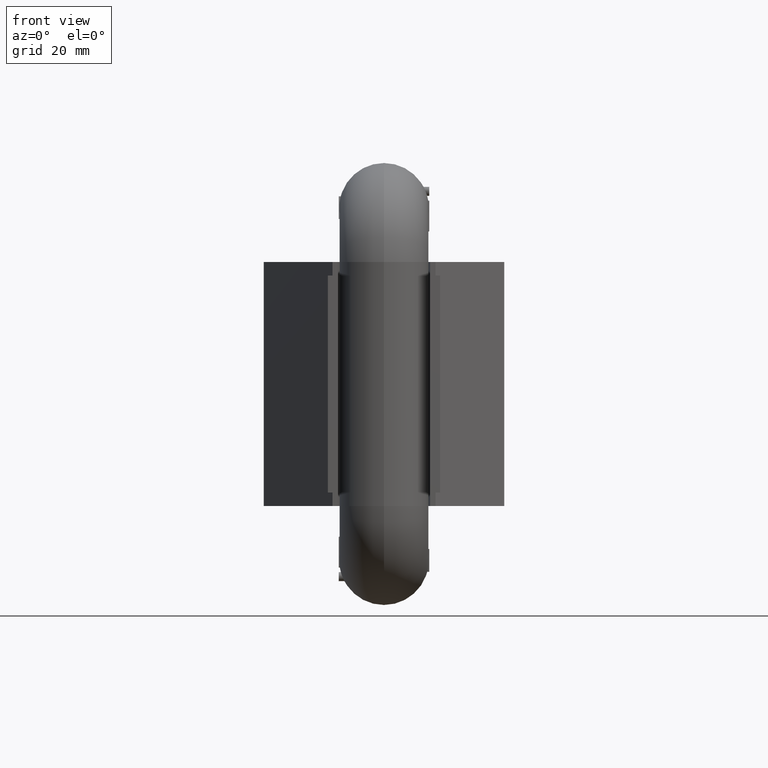
[diagram: clean part render]
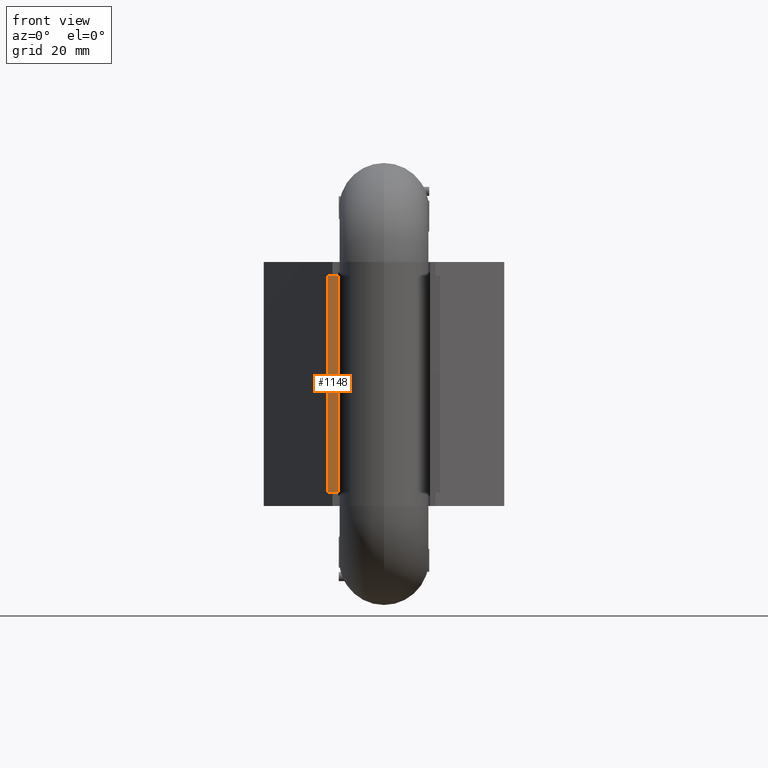
[diagram: same view with one face highlighted and labeled with its STEP entity id]
A machine part, front view. The second image highlights one B-rep face of the part: STEP entity #1148.
In plain terms, the highlighted planar face has unit normal (0, -1, 0).
Its self-contained STEP definition (entity closure, byte-faithful):
#937=PLANE('',#7090);
#1148=ADVANCED_FACE('',(#1549),#937,.T.);
#1549=FACE_OUTER_BOUND('',#1911,.T.);
#1911=EDGE_LOOP('',(#2424,#2425,#2426,#2427));
#2424=ORIENTED_EDGE('',*,*,#5100,.F.);
#2425=ORIENTED_EDGE('',*,*,#5101,.T.);
#2426=ORIENTED_EDGE('',*,*,#5102,.T.);
#2427=ORIENTED_EDGE('',*,*,#5103,.T.);
#4424=VERTEX_POINT('',#8724);
#4425=VERTEX_POINT('',#8725);
#4426=VERTEX_POINT('',#8727);
#4427=VERTEX_POINT('',#8729);
#5100=EDGE_CURVE('',#4424,#4425,#6098,.T.);
#5101=EDGE_CURVE('',#4424,#4426,#6099,.T.);
#5102=EDGE_CURVE('',#4426,#4427,#6100,.T.);
#5103=EDGE_CURVE('',#4427,#4425,#6101,.T.);
#6098=LINE('',#8723,#6522);
#6099=LINE('',#8726,#6523);
#6100=LINE('',#8728,#6524);
#6101=LINE('',#8730,#6525);
#6522=VECTOR('',#7455,1.);
#6523=VECTOR('',#7456,1.);
#6524=VECTOR('',#7457,1.);
#6525=VECTOR('',#7458,1.);
#7090=AXIS2_PLACEMENT_3D('',#8731,#7459,#7460);
#7455=DIRECTION('',(1.,1.21820468818596E-16,0.));
#7456=DIRECTION('',(0.,0.,-1.));
#7457=DIRECTION('',(1.,1.21820468818596E-16,0.));
#7458=DIRECTION('',(0.,0.,1.));
#7459=DIRECTION('',(1.21820468818596E-16,-1.,0.));
#7460=DIRECTION('',(1.,1.21864324187371E-16,0.));
#8723=CARTESIAN_POINT('',(44.5,2.,40.));
#8724=CARTESIAN_POINT('',(-20.6781992623546,1.99999999999999,40.));
#8725=CARTESIAN_POINT('',(-17.,1.99999999999999,40.));
#8726=CARTESIAN_POINT('',(-20.6781992623546,1.99999999999999,40.));
#8727=CARTESIAN_POINT('',(-20.6781992623546,2.,-40.));
#8728=CARTESIAN_POINT('',(44.5,2.,-40.));
#8729=CARTESIAN_POINT('',(-17.,1.99999999999999,-40.));
#8730=CARTESIAN_POINT('',(-17.,1.99999999999999,45.));
#8731=CARTESIAN_POINT('',(44.5,2.,40.));